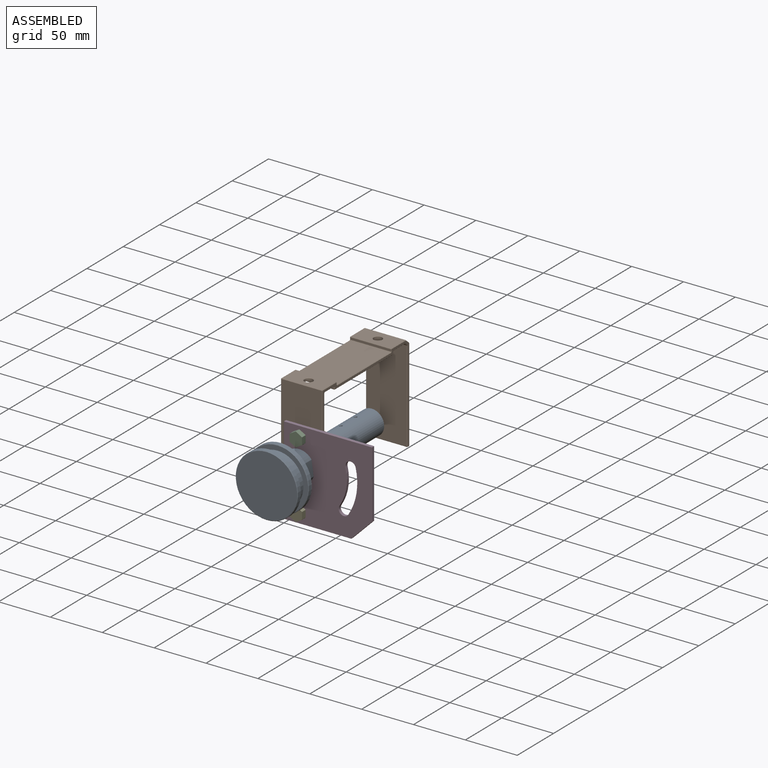
[diagram: assembled view]
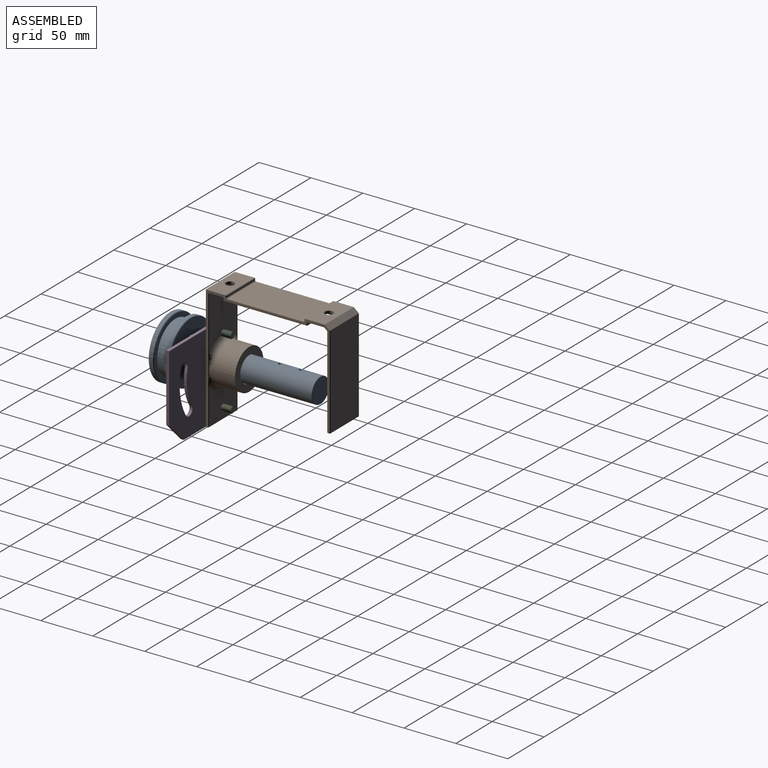
[diagram: assembled view, second angle]
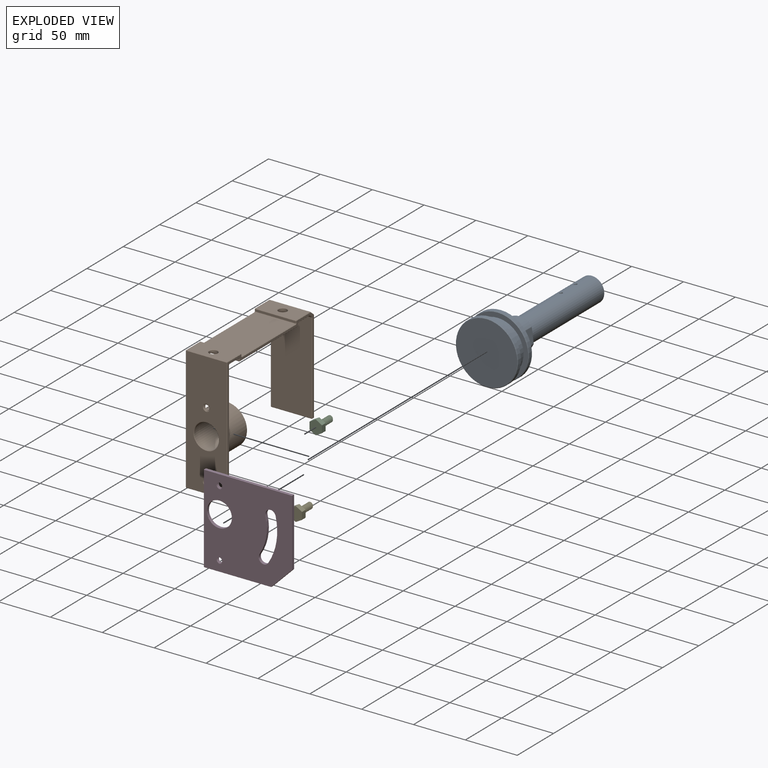
[diagram: exploded view]
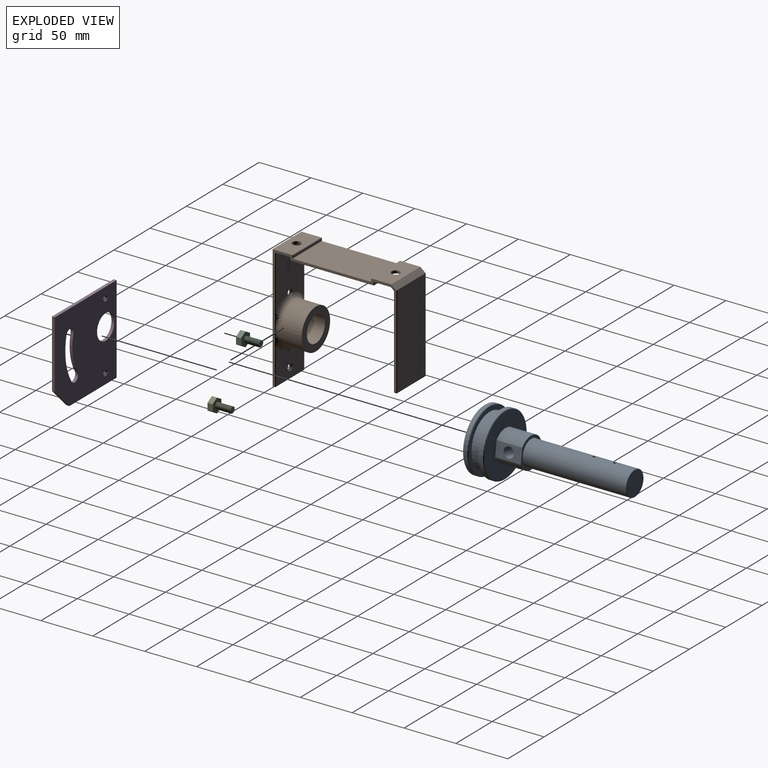
[diagram: exploded view, second angle]
ASSEMBLY  parts=5 mates=4
PART A: 35 faces, bbox 60x145x60 mm
  f0: cylinder r=12mm len=99.4mm, axis (0,1,0), area 7478.3mm2, adj f15,f16,f22,f23
  f1: plane 23.4x23.4mm, normal (0,1,0), area 430.1mm2, adj f15
  f2: plane 24.4x13.89mm, normal (1,0,0), area 260.5mm2, adj f5,f6,f10,f14,f17
  f3: cylinder r=15mm len=30mm, axis (0,1,0), area 1839.7mm2, adj f5,f6,f7,f11,f17
  f4: plane 29.4x27.56mm, normal (0,1,0), area 185.8mm2, adj f11,f12,f13,f14,f16
  f5: cylinder r=1mm len=24.4mm, axis (0,1,0), area 12.7mm2, adj f2,f3,f8,f12
  f6: cylinder r=1mm len=24.4mm, axis (0,1,0), area 12.7mm2, adj f2,f3,f9,f13
  f7: torus R=14.7mm, axis (0,-1,0), area 36.8mm2, adj f3,f8,f9,f24
  f8: torus R=0.7mm, axis (0,-1,0), area 0.2mm2, adj f5,f7,f10,f24
  f9: torus R=0.7mm, axis (0,-1,0), area 0.2mm2, adj f6,f7,f10,f24
  f10: cylinder r=0.3mm len=13.89mm, axis (0,0,-1), area 6.5mm2, adj f2,f8,f9,f24
  f11: torus R=14.7mm, axis (0,-1,0), area 36.8mm2, adj f3,f4,f12,f13
  f12: torus R=0.7mm, axis (0,-1,0), area 0.2mm2, adj f4,f5,f11,f14
  f13: torus R=0.7mm, axis (0,-1,0), area 0.2mm2, adj f4,f6,f11,f14
  f14: cylinder r=0.3mm len=13.89mm, axis (0,0,1), area 6.5mm2, adj f2,f4,f12,f13
  f15: torus R=11.7mm, axis (0,-1,0), area 35.2mm2, adj f0,f1
  f16: torus R=12.3mm, axis (0,-1,0), area 35.9mm2, adj f0,f4
  f17: cylinder r=5mm len=27.3mm, axis (1,0,0), area 857.6mm2, adj f2,f3
  f18: cylinder r=1.5mm len=14.9mm, axis (0,0,1), area 139.9mm2, adj f19,f22
  f19: plane 3x3mm, normal (0,0,1), area 7.1mm2, adj f18
  f20: cylinder r=1.5mm len=14.9mm, axis (0,0,1), area 139.9mm2, adj f21,f23
  f21: plane 3x3mm, normal (0,0,1), area 7.1mm2, adj f20
  f22: bspline ~3.23x3.2mm, area 1.4mm2, adj f0,f18
  f23: bspline ~3.23x3.2mm, area 1.4mm2, adj f0,f20
  f24: plane 59x59mm, normal (0,1,0), area 2072.9mm2, adj f7,f8,f9,f10,f31
  f25: cylinder r=30mm len=60mm, axis (0,1,0), area 754mm2, adj f31,f32
  f26: plane 59x59mm, normal (0,-1,0), area 770.5mm2, adj f27,f32
  f27: cylinder r=25mm len=50mm, axis (0,1,0), area 1570.8mm2, adj f26,f28
  f28: plane 59x59mm, normal (0,1,0), area 770.5mm2, adj f27,f33
  f29: cylinder r=30mm len=60mm, axis (0,1,0), area 754mm2, adj f33,f34
  f30: plane 59x59mm, normal (0,-1,0), area 2734mm2, adj f34
  f31: cone r=29.5mm half-angle=45deg, axis (0,-1,0), area 132.2mm2, adj f24,f25
  f32: cone r=30mm half-angle=45deg, axis (0,1,0), area 132.2mm2, adj f25,f26
  f33: cone r=29.5mm half-angle=45deg, axis (0,-1,0), area 132.2mm2, adj f28,f29
  f34: cone r=30mm half-angle=45deg, axis (0,1,0), area 132.2mm2, adj f29,f30
PART B: 152 faces, bbox 123.7x52.2x123.7 mm
  f0: bspline ~5x4.95mm, area 16mm2, adj f115,f126,f132,f133
  f1: plane 51.73x39.2mm, normal (1,0,0), area 1740.1mm2, adj f65,f66,f77,f115,f132,f134
  f2: plane 119.2x119.2mm, normal (0,-1,0), area 730.4mm2, adj f23,f24,f25,f26,f30,f34,f35,f40
  f3: plane 119.2x119.2mm, normal (0,1,0), area 730.4mm2, adj f28,f32,f33,f37,f38,f43,f47,f48
  f4: plane 119.2x39.2mm, normal (-1,0,0), area 4117mm2, adj f85,f86,f96,f97,f114,f117,f118
  f5: plane 39.2x2.2mm, normal (0,0,-1), area 86.2mm2, adj f75,f76,f86,f87
  f6: plane 39.2x34.73mm, normal (1,0,0), area 1058.7mm2, adj f65,f76,f77,f116,f129
  f7: plane 39.2x13.2mm, normal (0,0,-1), area 456.6mm2, adj f55,f56,f66,f67,f123
  f8: plane 39.2x2.2mm, normal (-1,0,0), area 86.2mm2, adj f45,f46,f56,f57
  f9: plane 80.2x39.2mm, normal (0,0,-1), area 3143.8mm2, adj f35,f36,f46,f47
  f10: plane 39.2x2.2mm, normal (1,0,0), area 86.2mm2, adj f26,f27,f36,f37
  f11: plane 39.2x15.36mm, normal (0,0,-1), area 541.3mm2, adj f23,f27,f28,f29,f121
  f12: plane 39.2x2.84mm, normal (-0.64,0,-0.77), area 145.3mm2, adj f29,f30,f38,f39
  f13: plane 88.02x39.2mm, normal (-1,0,0), area 3450.2mm2, adj f39,f40,f48,f49
  f14: plane 39.2x2.2mm, normal (0,0,-1), area 86.2mm2, adj f49,f50,f58,f59
  f15: plane 89.41x39.2mm, normal (1,0,0), area 3505mm2, adj f59,f60,f68,f69
  f16: plane 39.2x4.75mm, normal (0.64,0,0.77), area 243mm2, adj f69,f70,f78,f79
  f17: plane 39.2x19.45mm, normal (0,0,1), area 701.8mm2, adj f79,f80,f88,f89,f122
  f18: plane 39.2x2.2mm, normal (-1,0,0), area 86.2mm2, adj f89,f90,f98,f99
  f19: plane 74.2x39.2mm, normal (0,0,1), area 2908.6mm2, adj f99,f100,f108,f109
  f20: plane 39.2x2.2mm, normal (1,0,0), area 86.2mm2, adj f101,f106,f109,f112
  f21: plane 39.2x19.2mm, normal (0,0,1), area 691.8mm2, adj f95,f96,f106,f107,f124
  f22: cylinder r=12mm len=24mm, axis (-1,0,0), area 165.9mm2, adj f113,f118
  f23: plane 15.36x0.4mm, normal (0,-0.71,-0.71), area 8.7mm2, adj f2,f11,f24,f25
  f24: plane 0.8x0.8mm, normal (0.58,-0.58,-0.58), area 0.4mm2, adj f2,f23,f26,f27
  f25: plane 0.51x0.49mm, normal (-0.25,-0.68,-0.68), area 0.2mm2, adj f2,f23,f29,f30
  f26: plane 2.2x0.4mm, normal (0.71,-0.71,0), area 1.2mm2, adj f2,f10,f24,f31
  f27: plane 39.2x0.4mm, normal (0.71,0,-0.71), area 22.2mm2, adj f10,f11,f24,f32
  f28: plane 15.36x0.4mm, normal (0,0.71,-0.71), area 8.7mm2, adj f3,f11,f32,f33
  f29: plane 39.2x0.26mm, normal (-0.34,0,-0.94), area 10.7mm2, adj f11,f12,f25,f33
  f30: plane 3.1x2.69mm, normal (-0.45,-0.71,-0.54), area 2.1mm2, adj f2,f12,f25,f34
  f31: plane 0.4x0.4mm, normal (0.58,-0.58,-0.58), area 0.1mm2, adj f26,f35,f36
  f32: plane 0.8x0.8mm, normal (0.58,0.58,-0.58), area 0.4mm2, adj f3,f27,f28,f37
  f33: plane 0.51x0.49mm, normal (-0.25,0.68,-0.68), area 0.2mm2, adj f3,f28,f29,f38
  f34: plane 0.61x0.54mm, normal (-0.67,-0.67,-0.31), area 0.3mm2, adj f2,f30,f39,f40
  f35: plane 80.2x0.4mm, normal (0,-0.71,-0.71), area 45.4mm2, adj f2,f9,f31,f41
  f36: plane 39.2x0.4mm, normal (0.71,0,-0.71), area 22.2mm2, adj f9,f10,f31,f42
  f37: plane 2.2x0.4mm, normal (0.71,0.71,0), area 1.2mm2, adj f3,f10,f32,f42
  f38: plane 3.1x2.69mm, normal (-0.45,0.71,-0.54), area 2.1mm2, adj f3,f12,f33,f43
  f39: plane 39.2x0.31mm, normal (-0.91,0,-0.42), area 13.2mm2, adj f12,f13,f34,f43
  f40: plane 88.02x0.4mm, normal (-0.71,-0.71,0), area 49.8mm2, adj f2,f13,f34,f44
  f41: plane 0.4x0.4mm, normal (-0.58,-0.58,-0.58), area 0.1mm2, adj f35,f45,f46
  f42: plane 0.4x0.4mm, normal (0.58,0.58,-0.58), area 0.1mm2, adj f36,f37,f47
  f43: plane 0.61x0.54mm, normal (-0.67,0.67,-0.31), area 0.3mm2, adj f3,f38,f39,f48
  f44: plane 0.4x0.4mm, normal (-0.58,-0.58,-0.58), area 0.1mm2, adj f40,f49,f50
  f45: plane 2.2x0.4mm, normal (-0.71,-0.71,0), area 1.2mm2, adj f2,f8,f41,f51
  f46: plane 39.2x0.4mm, normal (-0.71,0,-0.71), area 22.2mm2, adj f8,f9,f41,f52
  f47: plane 80.2x0.4mm, normal (0,0.71,-0.71), area 45.4mm2, adj f3,f9,f42,f52
  f48: plane 88.02x0.4mm, normal (-0.71,0.71,0), area 49.8mm2, adj f3,f13,f43,f53
  f49: plane 39.2x0.4mm, normal (-0.71,0,-0.71), area 22.2mm2, adj f13,f14,f44,f53
  f50: plane 2.2x0.4mm, normal (0,-0.71,-0.71), area 1.2mm2, adj f2,f14,f44,f54
  f51: plane 0.8x0.8mm, normal (-0.58,-0.58,-0.58), area 0.4mm2, adj f2,f45,f55,f56
  f52: plane 0.4x0.4mm, normal (-0.58,0.58,-0.58), area 0.1mm2, adj f46,f47,f57
  f53: plane 0.4x0.4mm, normal (-0.58,0.58,-0.58), area 0.1mm2, adj f48,f49,f58
  f54: plane 0.4x0.4mm, normal (0.58,-0.58,-0.58), area 0.1mm2, adj f50,f59,f60
  f55: plane 13.2x0.4mm, normal (0,-0.71,-0.71), area 7.5mm2, adj f2,f7,f51,f61
  f56: plane 39.2x0.4mm, normal (-0.71,0,-0.71), area 22.2mm2, adj f7,f8,f51,f62
  f57: plane 2.2x0.4mm, normal (-0.71,0.71,0), area 1.2mm2, adj f3,f8,f52,f62
  f58: plane 2.2x0.4mm, normal (0,0.71,-0.71), area 1.2mm2, adj f3,f14,f53,f63
  f59: plane 39.2x0.4mm, normal (0.71,0,-0.71), area 22.2mm2, adj f14,f15,f54,f63
  f60: plane 89.41x0.4mm, normal (0.71,-0.71,0), area 50.6mm2, adj f2,f15,f54,f64
  f61: plane 0.8x0.8mm, normal (0.58,-0.58,-0.58), area 0.4mm2, adj f2,f55,f65,f66
  f62: plane 0.8x0.8mm, normal (-0.58,0.58,-0.58), area 0.4mm2, adj f3,f56,f57,f67
  f63: plane 0.4x0.4mm, normal (0.58,0.58,-0.58), area 0.1mm2, adj f58,f59,f68
  f64: plane 0.4x0.4mm, normal (0.67,-0.67,0.31), area 0.1mm2, adj f60,f69,f70
  f65: plane 119.85x4.05mm, normal (0.71,-0.71,0), area 65.7mm2, adj f1,f2,f6,f61,f71,f130,f131
  f66: plane 39.2x0.4mm, normal (0.71,0,-0.71), area 22.2mm2, adj f1,f7,f61,f72
  f67: plane 13.2x0.4mm, normal (0,0.71,-0.71), area 7.5mm2, adj f3,f7,f62,f72
  f68: plane 89.41x0.4mm, normal (0.71,0.71,0), area 50.6mm2, adj f3,f15,f63,f73
  f69: plane 39.2x0.31mm, normal (0.91,0,0.42), area 13.2mm2, adj f15,f16,f64,f73
  f70: plane 5x4.29mm, normal (0.45,-0.71,0.54), area 3.5mm2, adj f2,f16,f64,f74
  f71: plane 0.4x0.4mm, normal (0.58,-0.58,-0.58), area 0.1mm2, adj f65,f75,f76
  f72: plane 0.8x0.8mm, normal (0.58,0.58,-0.58), area 0.4mm2, adj f3,f66,f67,f77
  f73: plane 0.4x0.4mm, normal (0.67,0.67,0.31), area 0.1mm2, adj f68,f69,f78
  f74: plane 0.4x0.4mm, normal (0.25,-0.68,0.68), area 0.1mm2, adj f70,f79,f80
  f75: plane 2.2x0.4mm, normal (0,-0.71,-0.71), area 1.2mm2, adj f2,f5,f71,f81
  f76: plane 39.2x0.4mm, normal (0.71,0,-0.71), area 22.2mm2, adj f5,f6,f71,f82
  f77: plane 119.85x4.05mm, normal (0.71,0.71,0), area 65.7mm2, adj f1,f3,f6,f72,f82,f128,f135
  f78: plane 5x4.29mm, normal (0.45,0.71,0.54), area 3.5mm2, adj f3,f16,f73,f83
  f79: plane 39.2x0.26mm, normal (0.34,0,0.94), area 10.7mm2, adj f16,f17,f74,f83
  f80: plane 19.45x0.4mm, normal (0,-0.71,0.71), area 11mm2, adj f2,f17,f74,f84
  f81: plane 0.4x0.4mm, normal (-0.58,-0.58,-0.58), area 0.1mm2, adj f75,f85,f86
  f82: plane 0.4x0.4mm, normal (0.58,0.58,-0.58), area 0.1mm2, adj f76,f77,f87
  f83: plane 0.4x0.4mm, normal (0.25,0.68,0.68), area 0.1mm2, adj f78,f79,f88
  f84: plane 0.4x0.4mm, normal (-0.58,-0.58,0.58), area 0.1mm2, adj f80,f89,f90
  f85: plane 119.2x0.4mm, normal (-0.71,-0.71,0), area 67.4mm2, adj f2,f4,f81,f91
  f86: plane 39.2x0.4mm, normal (-0.71,0,-0.71), area 22.2mm2, adj f4,f5,f81,f92
  f87: plane 2.2x0.4mm, normal (0,0.71,-0.71), area 1.2mm2, adj f3,f5,f82,f92
  f88: plane 19.45x0.4mm, normal (0,0.71,0.71), area 11mm2, adj f3,f17,f83,f93
  f89: plane 39.2x0.4mm, normal (-0.71,0,0.71), area 22.2mm2, adj f17,f18,f84,f93
  f90: plane 2.2x0.4mm, normal (-0.71,-0.71,0), area 1.2mm2, adj f2,f18,f84,f94
  f91: plane 0.4x0.4mm, normal (-0.58,-0.58,0.58), area 0.1mm2, adj f85,f95,f96
  f92: plane 0.4x0.4mm, normal (-0.58,0.58,-0.58), area 0.1mm2, adj f86,f87,f97
  f93: plane 0.4x0.4mm, normal (-0.58,0.58,0.58), area 0.1mm2, adj f88,f89,f98
  f94: plane 0.8x0.8mm, normal (-0.58,-0.58,0.58), area 0.4mm2, adj f2,f90,f99,f100
  f95: plane 19.2x0.4mm, normal (0,-0.71,0.71), area 10.9mm2, adj f2,f21,f91,f102
  f96: plane 39.2x0.4mm, normal (-0.71,0,0.71), area 22.2mm2, adj f4,f21,f91,f103
  f97: plane 119.2x0.4mm, normal (-0.71,0.71,0), area 67.4mm2, adj f3,f4,f92,f103
  f98: plane 2.2x0.4mm, normal (-0.71,0.71,0), area 1.2mm2, adj f3,f18,f93,f104
  f99: plane 39.2x0.4mm, normal (-0.71,0,0.71), area 22.2mm2, adj f18,f19,f94,f104
  f100: plane 74.2x0.4mm, normal (0,-0.71,0.71), area 42mm2, adj f2,f19,f94,f105
  f101: plane 2.2x0.4mm, normal (0.71,-0.71,0), area 1.2mm2, adj f2,f20,f102,f105
  f102: plane 0.4x0.4mm, normal (0.58,-0.58,0.58), area 0.1mm2, adj f95,f101,f106
  f103: plane 0.4x0.4mm, normal (-0.58,0.58,0.58), area 0.1mm2, adj f96,f97,f107
  f104: plane 0.8x0.8mm, normal (-0.58,0.58,0.58), area 0.4mm2, adj f3,f98,f99,f108
  f105: plane 0.8x0.8mm, normal (0.58,-0.58,0.58), area 0.4mm2, adj f2,f100,f101,f109
  f106: plane 39.2x0.4mm, normal (0.71,0,0.71), area 22.2mm2, adj f20,f21,f102,f110
  f107: plane 19.2x0.4mm, normal (0,0.71,0.71), area 10.9mm2, adj f3,f21,f103,f110
  f108: plane 74.2x0.4mm, normal (0,0.71,0.71), area 42mm2, adj f3,f19,f104,f111
  f109: plane 39.2x0.4mm, normal (0.71,0,0.71), area 22.2mm2, adj f19,f20,f105,f111
  f110: plane 0.4x0.4mm, normal (0.58,0.58,0.58), area 0.1mm2, adj f106,f107,f112
  f111: plane 0.8x0.8mm, normal (0.58,0.58,0.58), area 0.4mm2, adj f3,f108,f109,f112
  f112: plane 2.2x0.4mm, normal (0.71,0.71,0), area 1.2mm2, adj f3,f20,f110,f111
  f113: cone r=12.4mm half-angle=45deg, axis (1,0,0), area 43.4mm2, adj f22,f125
  f114: cone r=3mm half-angle=45deg, axis (-1,0,0), area 11.4mm2, adj f4,f148,f149
  f115: cone r=3.4mm half-angle=45deg, axis (1,0,0), area 11.4mm2, adj f0,f1,f133,f139,f141
  f116: cone r=3.4mm half-angle=45deg, axis (1,0,0), area 11.4mm2, adj f6,f147,f150
  f117: cone r=3mm half-angle=45deg, axis (-1,0,0), area 11.4mm2, adj f4,f140,f142
  f118: cone r=12mm half-angle=45deg, axis (-1,0,0), area 43.4mm2, adj f4,f22
  f119: cylinder r=4mm len=8mm, axis (0,0,1), area 55.3mm2, adj f123,f124
  f120: cylinder r=4mm len=8mm, axis (0,0,1), area 55.3mm2, adj f121,f122
  f121: cone r=4.4mm half-angle=45deg, axis (0,0,-1), area 14.9mm2, adj f11,f120
  f122: cone r=4mm half-angle=45deg, axis (0,0,1), area 14.9mm2, adj f17,f120
  f123: cone r=4.4mm half-angle=45deg, axis (0,0,-1), area 14.9mm2, adj f7,f119
  f124: cone r=4mm half-angle=45deg, axis (0,0,1), area 14.9mm2, adj f21,f119
  f125: cylinder r=12.4mm len=25mm, axis (-1,0,0), area 1947.8mm2, adj f113,f127
  f126: cylinder r=19.6mm len=39.2mm, axis (-1,0,0), area 2592.9mm2, adj f0,f127,f128,f129,f130,f131,f132,f133
  f127: plane 39.2x39.2mm, normal (1,0,0), area 723.8mm2, adj f125,f126
  f128: bspline ~15.1x5.12mm, area 32.2mm2, adj f77,f126,f129
  f129: torus R=24.6mm, axis (1,0,0), area 310.1mm2, adj f6,f126,f128,f130
  f130: bspline ~15.1x5.12mm, area 31.8mm2, adj f65,f126,f129
  f131: bspline ~15.1x5.12mm, area 32.2mm2, adj f65,f126,f132
  f132: torus R=24.6mm, axis (1,0,0), area 132.2mm2, adj f0,f1,f126,f131
  f133: bspline ~5x4.95mm, area 16.6mm2, adj f0,f115,f126,f134
  f134: torus R=24.6mm, axis (1,0,0), area 132.2mm2, adj f1,f126,f133,f135
  f135: bspline ~15.1x5.12mm, area 31.8mm2, adj f77,f126,f134
  f136: bspline ~7.02x6.08mm, area 24mm2, adj f138,f139,f140,f141,f142,f143
  f137: bspline ~7.02x6.08mm, area 23.9mm2, adj f138,f139,f140,f141,f142,f143
  f138: bspline ~7.13x6.17mm, area 6.1mm2, adj f136,f137,f139,f140
  f139: plane 2.78x1.48mm, normal (-1,0,0), area 0.2mm2, adj f115,f136,f137,f138
  f140: plane 2.26x2.22mm, normal (1,0,0), area 0.2mm2, adj f117,f136,f137,f138
  f141: plane 6.25x6.24mm, normal (1,0,0), area 4.7mm2, adj f115,f136,f137,f143
  f142: plane 6.24x6.24mm, normal (-1,0,0), area 4.7mm2, adj f117,f136,f137,f143
  f143: cylinder r=2.5mm len=5mm, axis (1,0,0), area 8.6mm2, adj f136,f137,f141,f142
  f144: bspline ~7.02x6.08mm, area 24mm2, adj f146,f147,f148,f149,f150,f151
  f145: bspline ~7.02x6.08mm, area 23.9mm2, adj f146,f147,f148,f149,f150,f151
  f146: bspline ~7.13x6.17mm, area 6.1mm2, adj f144,f145,f147,f148
  f147: plane 2.78x1.48mm, normal (-1,0,0), area 0.2mm2, adj f116,f144,f145,f146
  f148: plane 2.26x2.22mm, normal (1,0,0), area 0.2mm2, adj f114,f144,f145,f146
  f149: plane 6.24x6.24mm, normal (-1,0,0), area 4.7mm2, adj f114,f144,f145,f151
  f150: plane 6.25x6.24mm, normal (1,0,0), area 4.7mm2, adj f116,f144,f145,f151
  f151: cylinder r=2.5mm len=5mm, axis (1,0,0), area 8.6mm2, adj f144,f145,f149,f150
PART C: 19 faces, bbox 12.3x20.7x14 mm
  f0: cylinder r=3mm len=15mm, axis (0,1,0), area 29.8mm2, adj f1,f9,f11,f12
  f1: plane 5.69x5.66mm, normal (0,1,0), area 22.8mm2, adj f0,f10,f11,f12
  f2: plane 5.5x5mm, normal (0.5,0,-0.87), area 31.8mm2, adj f8,f9,f13,f18
  f3: plane 6.35x5mm, normal (1,0,0), area 31.8mm2, adj f8,f9,f13,f14
  f4: plane 5.5x5mm, normal (0.5,0,0.87), area 31.8mm2, adj f8,f9,f14,f15
  f5: plane 5.5x5mm, normal (-0.5,0,0.87), area 31.8mm2, adj f8,f9,f15,f16
  f6: plane 6.35x5mm, normal (-1,0,0), area 31.8mm2, adj f8,f9,f16,f17
  f7: plane 5.5x5mm, normal (-0.5,0,-0.87), area 31.8mm2, adj f8,f9,f17,f18
  f8: plane 13.7x12mm, normal (0,-1,0), area 124.6mm2, adj f2,f3,f4,f5,f6,f7,f13,f14
  f9: plane 13.98x12.28mm, normal (0,1,0), area 101.8mm2, adj f0,f2,f3,f4,f5,f6,f7,f10
  f10: bspline ~15.75x5.68mm, area 64.1mm2, adj f1,f9,f11,f12
  f11: bspline ~15.81x6.93mm, area 161.1mm2, adj f0,f1,f9,f10
  f12: bspline ~15.65x6.93mm, area 160.7mm2, adj f0,f1,f9,f10
  f13: cylinder r=0.5mm len=5mm, axis (0,1,0), area 2.6mm2, adj f2,f3,f8,f9
  f14: cylinder r=0.5mm len=5mm, axis (0,1,0), area 2.6mm2, adj f3,f4,f8,f9
  f15: cylinder r=0.5mm len=5mm, axis (0,1,0), area 2.6mm2, adj f4,f5,f8,f9
  f16: cylinder r=0.5mm len=5mm, axis (0,1,0), area 2.6mm2, adj f5,f6,f8,f9
  f17: cylinder r=0.5mm len=5mm, axis (0,1,0), area 2.6mm2, adj f6,f7,f8,f9
  f18: cylinder r=0.5mm len=5mm, axis (0,1,0), area 2.6mm2, adj f2,f7,f8,f9
PART D: 55 faces, bbox 85.3x4.1x85.3 mm
  f0: cylinder r=45.71mm len=35.15mm, axis (0,1,0), area 102.4mm2, adj f1,f9,f13,f16
  f1: cylinder r=5mm len=9.86mm, axis (0,1,0), area 44mm2, adj f0,f2,f12,f17
  f2: cylinder r=55.71mm len=42.85mm, axis (0,1,0), area 124.9mm2, adj f1,f9,f14,f19
  f3: plane 84.8x2.8mm, normal (-1,0,0), area 237.4mm2, adj f23,f24,f31,f32
  f4: plane 64.86x2.8mm, normal (0,0,-1), area 181.6mm2, adj f32,f33,f41,f42
  f5: plane 19.94x19.94mm, normal (0.71,0,-0.71), area 79mm2, adj f34,f39,f42,f45
  f6: plane 64.86x2.8mm, normal (1,0,0), area 181.6mm2, adj f28,f29,f39,f40
  f7: cylinder r=12mm len=24mm, axis (0,1,0), area 211.1mm2, adj f20,f46
  f8: plane 84.8x2.8mm, normal (0,0,1), area 237.4mm2, adj f22,f23,f29,f30
  f9: cylinder r=5mm len=9.23mm, axis (0,1,0), area 44mm2, adj f0,f2,f15,f18
  f10: plane 85.09x85.09mm, normal (0,-1,0), area 5989.1mm2, adj f12,f13,f14,f15,f22,f24,f28,f33
  f11: plane 85.09x85.09mm, normal (0,1,0), area 5989.1mm2, adj f16,f17,f18,f19,f20,f30,f31,f40
  f12: cone r=5.1mm half-angle=45deg, axis (0,-1,0), area 2.2mm2, adj f1,f10,f13,f14
  f13: cone r=45.71mm half-angle=45deg, axis (0,1,0), area 5.2mm2, adj f0,f10,f12,f15
  f14: cone r=55.81mm half-angle=45deg, axis (0,-1,0), area 6.3mm2, adj f2,f10,f12,f15
  f15: cone r=5mm half-angle=45deg, axis (0,-1,0), area 2.2mm2, adj f9,f10,f13,f14
  f16: cone r=45.61mm half-angle=45deg, axis (0,-1,0), area 5.2mm2, adj f0,f11,f17,f18
  f17: cone r=5mm half-angle=45deg, axis (0,1,0), area 2.2mm2, adj f1,f11,f16,f19
  f18: cone r=5.1mm half-angle=45deg, axis (0,1,0), area 2.2mm2, adj f9,f11,f16,f19
  f19: cone r=55.71mm half-angle=45deg, axis (0,1,0), area 6.3mm2, adj f2,f11,f17,f18
  f20: cone r=12.1mm half-angle=45deg, axis (0,1,0), area 10.7mm2, adj f7,f11
  f21: plane 0.1x0.1mm, normal (-0.58,-0.58,0.58), area 0mm2, adj f22,f23,f24
  f22: plane 84.8x0.1mm, normal (0,-0.71,0.71), area 12mm2, adj f8,f10,f21,f25
  f23: plane 2.8x0.1mm, normal (-0.71,0,0.71), area 0.4mm2, adj f3,f8,f21,f26
  f24: plane 84.8x0.1mm, normal (-0.71,-0.71,0), area 12mm2, adj f3,f10,f21,f27
  f25: plane 0.1x0.1mm, normal (0.58,-0.58,0.58), area 0mm2, adj f22,f28,f29
  f26: plane 0.1x0.1mm, normal (-0.58,0.58,0.58), area 0mm2, adj f23,f30,f31
  f27: plane 0.1x0.1mm, normal (-0.58,-0.58,-0.58), area 0mm2, adj f24,f32,f33
  f28: plane 64.86x0.1mm, normal (0.71,-0.71,0), area 9.2mm2, adj f6,f10,f25,f35
  f29: plane 2.8x0.1mm, normal (0.71,0,0.71), area 0.4mm2, adj f6,f8,f25,f36
  f30: plane 84.8x0.1mm, normal (0,0.71,0.71), area 12mm2, adj f8,f11,f26,f36
  f31: plane 84.8x0.1mm, normal (-0.71,0.71,0), area 12mm2, adj f3,f11,f26,f37
  f32: plane 2.8x0.1mm, normal (-0.71,0,-0.71), area 0.4mm2, adj f3,f4,f27,f37
  f33: plane 64.86x0.1mm, normal (0,-0.71,-0.71), area 9.2mm2, adj f4,f10,f27,f38
  f34: plane 20.01x20.01mm, normal (0.5,-0.71,-0.5), area 4mm2, adj f5,f10,f35,f38
  f35: plane 0.1x0.1mm, normal (0.68,-0.68,-0.28), area 0mm2, adj f28,f34,f39
  f36: plane 0.1x0.1mm, normal (0.58,0.58,0.58), area 0mm2, adj f29,f30,f40
  f37: plane 0.1x0.1mm, normal (-0.58,0.58,-0.58), area 0mm2, adj f31,f32,f41
  f38: plane 0.1x0.1mm, normal (0.28,-0.68,-0.68), area 0mm2, adj f33,f34,f42
  f39: plane 2.8x0.07mm, normal (0.92,0,-0.38), area 0.2mm2, adj f5,f6,f35,f43
  f40: plane 64.86x0.1mm, normal (0.71,0.71,0), area 9.2mm2, adj f6,f11,f36,f43
  f41: plane 64.86x0.1mm, normal (0,0.71,-0.71), area 9.2mm2, adj f4,f11,f37,f44
  f42: plane 2.8x0.07mm, normal (0.38,0,-0.92), area 0.2mm2, adj f4,f5,f38,f44
  f43: plane 0.1x0.1mm, normal (0.68,0.68,-0.28), area 0mm2, adj f39,f40,f45
  f44: plane 0.1x0.1mm, normal (0.28,0.68,-0.68), area 0mm2, adj f41,f42,f45
  f45: plane 20.01x20.01mm, normal (0.5,0.71,-0.5), area 4mm2, adj f5,f11,f43,f44
  f46: cone r=12mm half-angle=45deg, axis (0,-1,0), area 10.7mm2, adj f7,f10
  f47: bspline ~7.02x6.08mm, area 32.7mm2, adj f10,f11,f49,f50
  f48: bspline ~7.02x6.08mm, area 32.7mm2, adj f10,f11,f49,f50
  f49: bspline ~7.13x6.17mm, area 8.4mm2, adj f10,f11,f47,f48
  f50: cylinder r=2.5mm len=5mm, axis (0,-1,0), area 11.8mm2, adj f10,f11,f47,f48
  f51: bspline ~7.02x6.08mm, area 32.7mm2, adj f10,f11,f53,f54
  f52: bspline ~7.02x6.08mm, area 32.7mm2, adj f10,f11,f53,f54
  f53: bspline ~7.13x6.17mm, area 8.4mm2, adj f10,f11,f51,f52
  f54: cylinder r=2.5mm len=5mm, axis (0,-1,0), area 11.8mm2, adj f10,f11,f51,f52
PART E: same geometry as C
PLACE A rot(axis=(0,-1,0),7.9deg) t=(14.9,49.9,49.9)mm
PLACE B rot(axis=(0,0,1),90deg) t=(14.9,66.07,78.71)mm fixed
PLACE C t=(14.87,15.1,74.96)mm
PLACE D t=(42.4,1.6,42.4)mm
PLACE E t=(14.87,15.1,9.96)mm
MATE revolute D.f50 <-> C.f9  axis (0,-1,0) through (14.9,0.1,74.9)mm
MATE revolute A.f0 <-> D.f0  axis (0,-1,0) through (14.9,0.2,49.9)mm
MATE revolute D.f54 <-> E.f9  axis (0,-1,0) through (14.9,0.1,9.9)mm
MATE fastened D.f54 <-> B.f114  axis (0,1,0) through (14.9,3.1,9.9)mm
